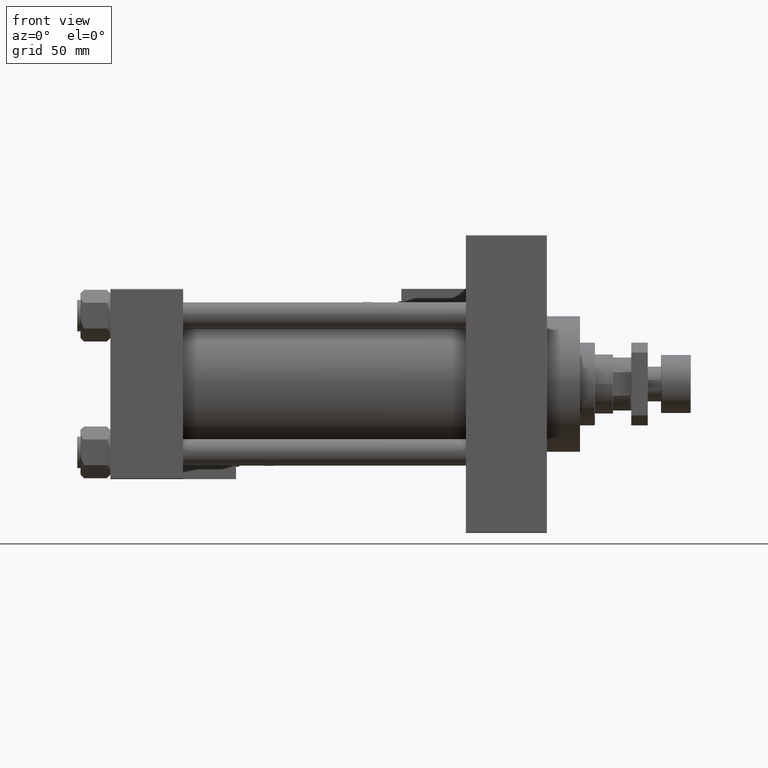
[diagram: clean part render]
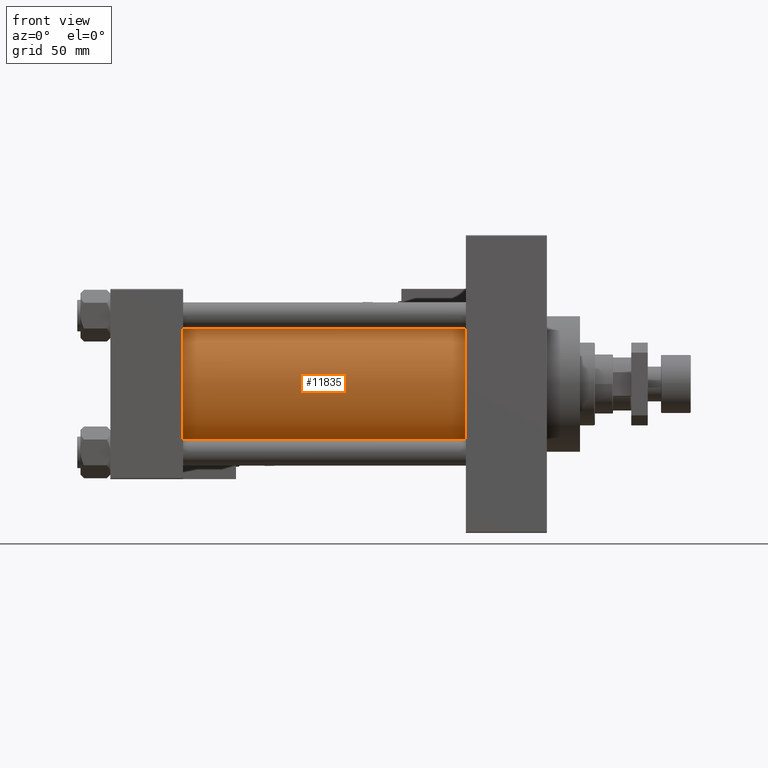
[diagram: same view with one face highlighted and labeled with its STEP entity id]
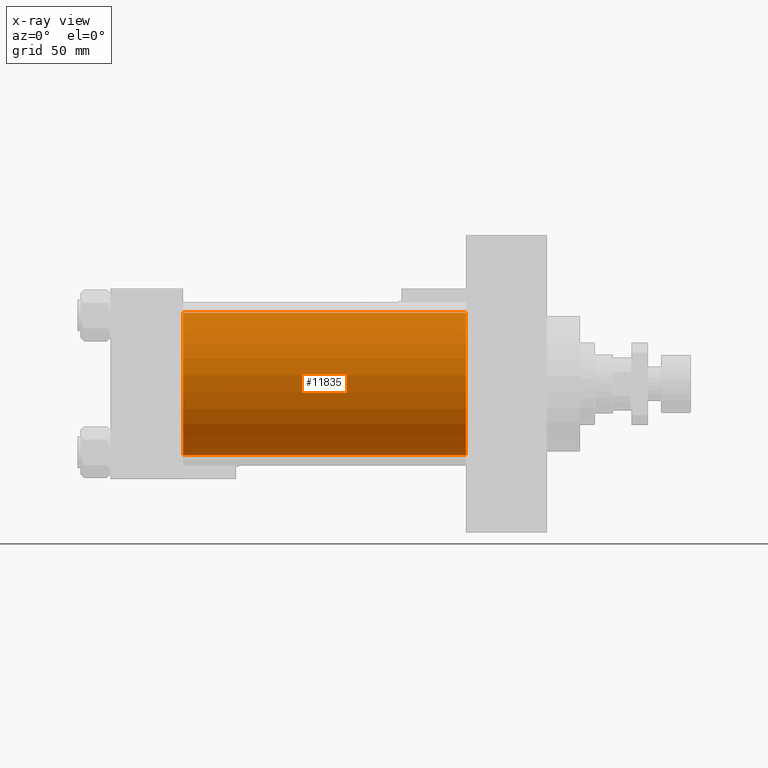
[diagram: x-ray of the same camera — body ghosted, the highlighted face saturated]
A machine part, front view. The second image highlights one B-rep face of the part: STEP entity #11835.
The next image is the same camera in x-ray: the body ghosted, the highlighted face saturated — about 0% of this face is hidden behind the body in this view.
In plain terms, the highlighted cylindrical surface (partial cylindrical patch) has radius 43 mm, axis along (-1, -0, -0).
Its self-contained STEP definition (entity closure, byte-faithful):
#382 = CARTESIAN_POINT ( 'NONE',  ( 215.0000000000000284, -2.602085213965210642E-15, 43.00000000000000000 ) ) ;
#1203 = CARTESIAN_POINT ( 'NONE',  ( 43.99999999999998579, -2.602085213965210642E-15, 0.000000000000000000 ) ) ;
#1618 = LINE ( 'NONE', #19293, #38275 ) ;
#1939 = ORIENTED_EDGE ( 'NONE', *, *, #31591, .T. ) ;
#2051 = CIRCLE ( 'NONE', #9025, 43.00000000000000000 ) ;
#8217 = AXIS2_PLACEMENT_3D ( 'NONE', #19499, #32278, #36099 ) ;
#9025 = AXIS2_PLACEMENT_3D ( 'NONE', #27351, #10759, #22988 ) ;
#9647 = CARTESIAN_POINT ( 'NONE',  ( 215.0000000000000284, -2.602085213965210642E-15, 43.00000000000000000 ) ) ;
#10759 = DIRECTION ( 'NONE',  ( 1.000000000000000000, 0.000000000000000000, 0.000000000000000000 ) ) ;
#11835 = ADVANCED_FACE ( 'NONE', ( #43199 ), #40986, .T. ) ;
#14272 = ORIENTED_EDGE ( 'NONE', *, *, #31521, .T. ) ;
#14906 = CARTESIAN_POINT ( 'NONE',  ( 215.0000000000000284, 2.663896022368408223E-15, -43.00000000000000000 ) ) ;
#17812 = DIRECTION ( 'NONE',  ( 1.000000000000000000, -0.000000000000000000, 0.000000000000000000 ) ) ;
#18086 = LINE ( 'NONE', #9647, #38849 ) ;
#19293 = CARTESIAN_POINT ( 'NONE',  ( 215.0000000000000284, 2.663896022368408223E-15, -43.00000000000000000 ) ) ;
#19499 = CARTESIAN_POINT ( 'NONE',  ( 215.0000000000000284, -2.602085213965210642E-15, 0.000000000000000000 ) ) ;
#19509 = CARTESIAN_POINT ( 'NONE',  ( 43.99999999999998579, -2.602085213965210642E-15, 43.00000000000000000 ) ) ;
#20080 = VERTEX_POINT ( 'NONE', #382 ) ;
#22661 = EDGE_CURVE ( 'NONE', #20080, #38429, #2051, .T. ) ;
#22988 = DIRECTION ( 'NONE',  ( 0.000000000000000000, 0.000000000000000000, -1.000000000000000000 ) ) ;
#26177 = VERTEX_POINT ( 'NONE', #28951 ) ;
#27351 = CARTESIAN_POINT ( 'NONE',  ( 215.0000000000000284, -2.602085213965210642E-15, 0.000000000000000000 ) ) ;
#28951 = CARTESIAN_POINT ( 'NONE',  ( 43.99999999999998579, 2.663896022368408223E-15, -43.00000000000000000 ) ) ;
#30062 = DIRECTION ( 'NONE',  ( -1.000000000000000000, -0.000000000000000000, -0.000000000000000000 ) ) ;
#31277 = DIRECTION ( 'NONE',  ( -1.000000000000000000, -0.000000000000000000, -0.000000000000000000 ) ) ;
#31318 = ORIENTED_EDGE ( 'NONE', *, *, #41108, .F. ) ;
#31521 = EDGE_CURVE ( 'NONE', #20080, #37583, #18086, .T. ) ;
#31591 = EDGE_CURVE ( 'NONE', #37583, #26177, #46669, .T. ) ;
#32278 = DIRECTION ( 'NONE',  ( -1.000000000000000000, -0.000000000000000000, -0.000000000000000000 ) ) ;
#32741 = AXIS2_PLACEMENT_3D ( 'NONE', #1203, #17812, #34403 ) ;
#34403 = DIRECTION ( 'NONE',  ( 0.000000000000000000, 0.000000000000000000, 1.000000000000000000 ) ) ;
#36099 = DIRECTION ( 'NONE',  ( 0.000000000000000000, 0.000000000000000000, 1.000000000000000000 ) ) ;
#37583 = VERTEX_POINT ( 'NONE', #19509 ) ;
#37624 = EDGE_LOOP ( 'NONE', ( #31318, #51238, #14272, #1939 ) ) ;
#38275 = VECTOR ( 'NONE', #31277, 1000.000000000000000 ) ;
#38429 = VERTEX_POINT ( 'NONE', #14906 ) ;
#38849 = VECTOR ( 'NONE', #30062, 1000.000000000000000 ) ;
#40986 = CYLINDRICAL_SURFACE ( 'NONE', #8217, 43.00000000000000000 ) ;
#41108 = EDGE_CURVE ( 'NONE', #38429, #26177, #1618, .T. ) ;
#43199 = FACE_OUTER_BOUND ( 'NONE', #37624, .T. ) ;
#46669 = CIRCLE ( 'NONE', #32741, 43.00000000000000000 ) ;
#51238 = ORIENTED_EDGE ( 'NONE', *, *, #22661, .F. ) ;